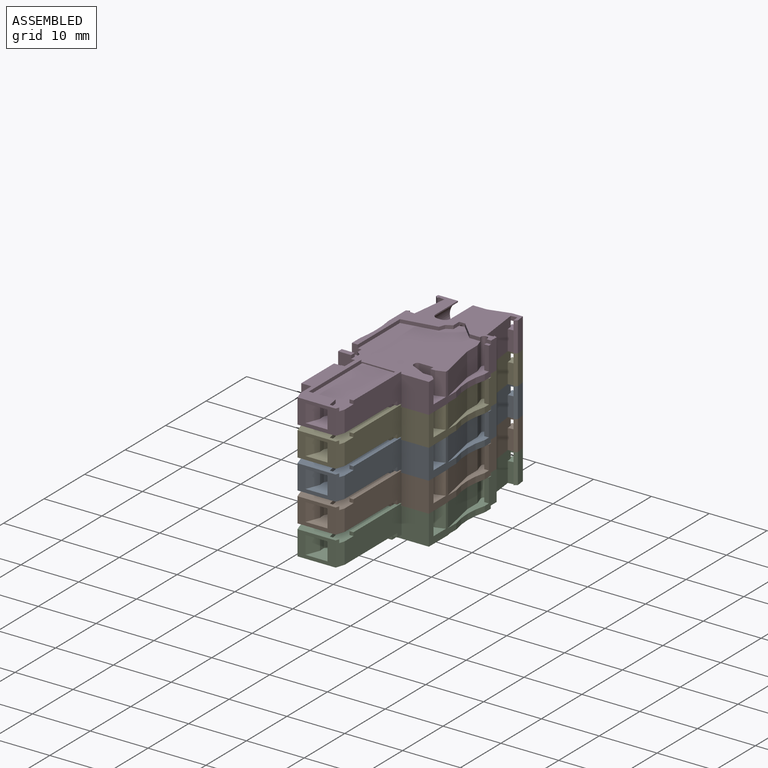
[diagram: assembled view]
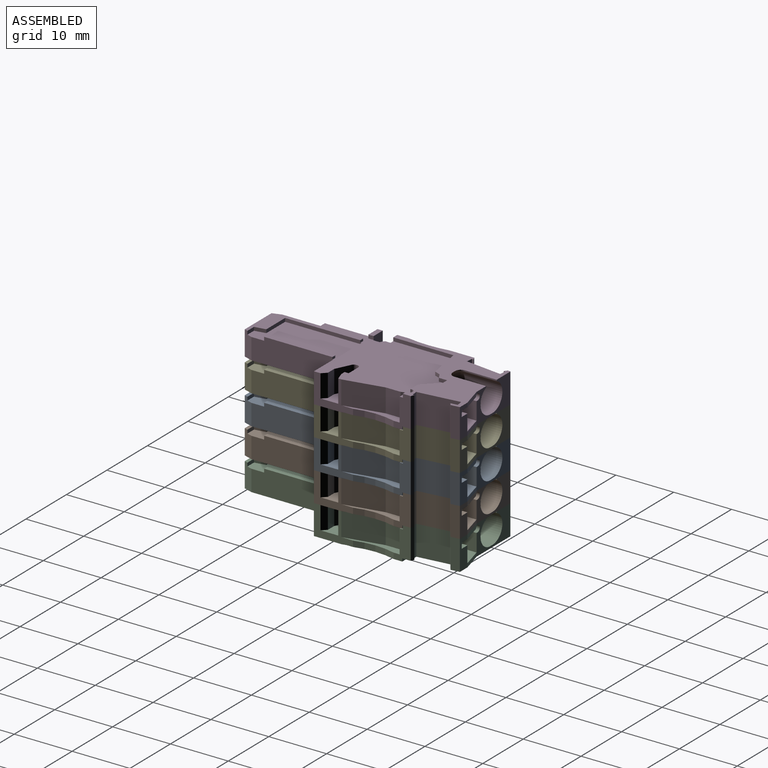
[diagram: assembled view, second angle]
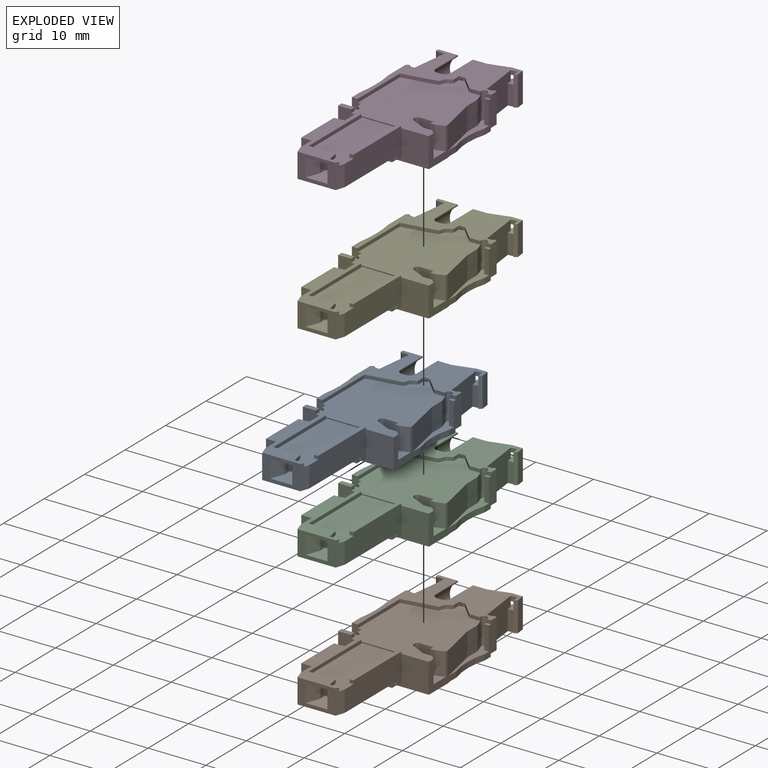
[diagram: exploded view]
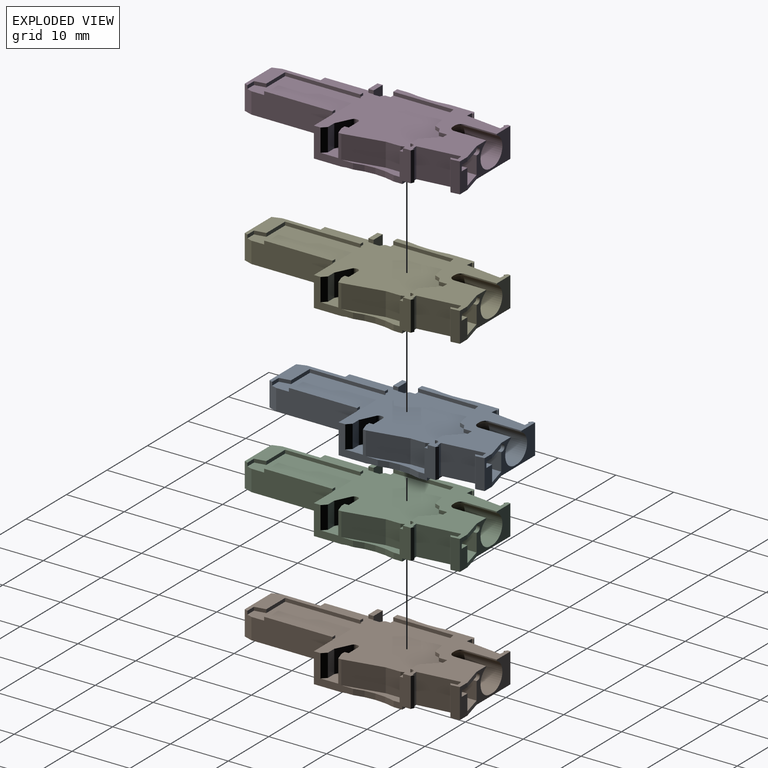
[diagram: exploded view, second angle]
ASSEMBLY  parts=5 mates=4
PART A: 174 faces, bbox 15.7x40.2x5.8 mm
  f0: plane 5.15x1.49mm, normal (0.99,0.12,0), area 7.8mm2, adj f1,f17,f164,f171
  f1: plane 5.15x0.49mm, normal (0.6,-0.8,0), area 3.1mm2, adj f0,f2,f164,f171
  f2: plane 5.15x1.16mm, normal (-0.99,-0.12,0), area 2.9mm2, adj f1,f3,f64,f78,f81,f164,f171
  f3: plane 3.45x1.06mm, normal (0.12,-0.99,0), area 3.7mm2, adj f2,f4,f64,f171
  f4: plane 7.17x5.15mm, normal (0.99,0.12,0), area 34.1mm2, adj f3,f5,f64,f79,f81,f164,f171
  f5: plane 5.15x1.06mm, normal (-0.12,0.99,0), area 5.5mm2, adj f4,f6,f164,f171
  f6: plane 5.15x0.27mm, normal (-0.99,-0.12,0), area 1.4mm2, adj f5,f7,f164,f171
  f7: plane 5.15x0.56mm, normal (0.39,0.92,0), area 3.1mm2, adj f6,f8,f164,f171
  f8: plane 5.65x2.95mm, normal (1,0,0), area 10.8mm2, adj f7,f9,f111,f112,f135,f136,f151,f152
  f9: cylinder r=12.6mm len=7.03mm, axis (0,0,1), area 7.1mm2, adj f8,f10,f112,f152
  f10: plane 6.76x5.15mm, normal (1,0,0), area 14.3mm2, adj f9,f99,f100,f102,f112,f119,f122,f128
  f11: plane 4.25x2.51mm, normal (-0.95,-0.32,0), area 7.8mm2, adj f12,f16,f18,f45,f59,f124,f167
  f12: plane 6.6x4.25mm, normal (0,-1,0), area 16.3mm2, adj f11,f14,f16,f51,f53,f54,f55,f59
  f13: plane 3.7x1mm, normal (-0.26,0.97,0), area 2.6mm2, adj f17,f27,f66,f76,f164
  f14: plane 4.25x1.5mm, normal (0.95,-0.32,0), area 6.2mm2, adj f12,f16,f59,f132,f160,f162
  f15: plane 1.13x1.1mm, normal (-1,0,0), area 1.2mm2, adj f116,f120,f121,f128
  f16: plane 15.5x7.3mm, normal (0,0,1), area 23.5mm2, adj f11,f12,f14,f118,f124,f130,f133,f145
  f17: plane 5.15x1.84mm, normal (0,1,0), area 8.1mm2, adj f0,f13,f60,f62,f64,f66,f78,f164
  f18: cylinder r=2mm len=3.06mm, axis (0,0,-1), area 3.5mm2, adj f11,f45,f124,f167
  f19: plane 11.8x0.7mm, normal (0,0,1), area 8.3mm2, adj f131,f132,f134,f159
  f20: plane 3.4x1.6mm, normal (0,-1,0), area 4.4mm2, adj f22,f40,f42,f46,f124,f165,f166
  f21: plane 5.15x0.49mm, normal (-0.99,0.12,0), area 2.6mm2, adj f27,f36,f164,f171
  f22: plane 8.1x1.6mm, normal (-1,0,0), area 13mm2, adj f20,f23,f46,f165
  f23: plane 2.4x1.6mm, normal (0,1,0), area 3mm2, adj f22,f24,f38,f39,f42,f44,f46,f165
  f24: plane 1x0.6mm, normal (-1,0,0), area 0.6mm2, adj f23,f25,f39,f44
  f25: plane 5.75x4.3mm, normal (0,-1,0), area 14.1mm2, adj f24,f26,f38,f39,f43,f44,f124,f128
  f26: plane 5.48x5.15mm, normal (-1,0,0), area 15.3mm2, adj f25,f28,f37,f44,f101,f120,f121,f164
  f27: plane 8.36x5.15mm, normal (0,1,0), area 21.2mm2, adj f13,f21,f60,f63,f76,f77,f86,f87
  f28: cylinder r=20.57mm len=7mm, axis (0,0,1), area 36.2mm2, adj f26,f29,f164,f171
  f29: plane 5.15x4.26mm, normal (-1,0,0), area 22mm2, adj f28,f30,f164,f171
  f30: plane 5.15x0.56mm, normal (-0.39,0.92,0), area 3.1mm2, adj f29,f31,f164,f171
  f31: plane 5.15x0.27mm, normal (0.99,-0.12,0), area 1.4mm2, adj f30,f32,f164,f171
  f32: plane 5.15x1.06mm, normal (0.12,0.99,0), area 5.5mm2, adj f31,f33,f164,f171
  f33: plane 6.28x5.15mm, normal (-0.99,0.12,0), area 32.6mm2, adj f32,f34,f164,f171
  f34: plane 5.15x1.06mm, normal (-0.12,-0.99,0), area 5.5mm2, adj f33,f35,f164,f171
  f35: plane 5.15x0.27mm, normal (0.99,-0.12,0), area 1.4mm2, adj f34,f36,f164,f171
  f36: plane 5.15x0.49mm, normal (-0.6,-0.8,0), area 3.2mm2, adj f21,f35,f164,f171
  f37: plane 2.53x1.2mm, normal (0.17,-0.98,0), area 3.1mm2, adj f26,f43,f44,f171
  f38: plane 1x0.6mm, normal (1,0,0), area 0.6mm2, adj f23,f25,f39,f44
  f39: plane 1.4x1mm, normal (0,0,1), area 1.4mm2, adj f23,f24,f25,f38
  f40: plane 1.2x1mm, normal (0,0,-1), area 1.1mm2, adj f20,f41,f42,f124
  f41: plane 1x0.6mm, normal (-0.2,0.98,0), area 0.6mm2, adj f40,f42,f124,f166
  f42: plane 8.1x1.6mm, normal (1,0,0), area 12.4mm2, adj f20,f23,f40,f41,f46,f165,f166
  f43: plane 3.63x2.53mm, normal (-1,0,0), area 9.2mm2, adj f25,f37,f44,f171
  f44: plane 4.63x1.9mm, normal (0,0,-1), area 5.6mm2, adj f23,f24,f25,f26,f37,f38,f43
  f45: plane 4.07x0.9mm, normal (0,0,-1), area 2.2mm2, adj f11,f18,f124
  f46: plane 8.1x2.4mm, normal (0,0,1), area 19.4mm2, adj f20,f22,f23,f42
  f47: plane 3.95x2.4mm, normal (0,-1,0), area 9.5mm2, adj f99,f107,f128,f143
  f48: plane 9x1.6mm, normal (0,0,-1), area 2.6mm2, adj f50,f51,f52,f56,f57,f108,f109,f110
  f49: plane 9x1.6mm, normal (0,0,1), area 2.6mm2, adj f50,f52,f53,f56,f57,f108,f109,f110
  f50: plane 2.75x0.94mm, normal (-1,0,0), area 2.5mm2, adj f48,f49,f51,f53,f55,f57
  f51: plane 3.8x2.5mm, normal (0,-0.09,-1), area 6.2mm2, adj f12,f48,f50,f52,f54,f55
  f52: plane 2.75x0.94mm, normal (1,0,0), area 2.5mm2, adj f48,f49,f51,f53,f54,f56
  f53: plane 3.8x2.5mm, normal (0,-0.09,1), area 6.2mm2, adj f12,f49,f50,f52,f54,f55
  f54: plane 3.1x2mm, normal (0.88,-0.48,0), area 6.7mm2, adj f12,f51,f52,f53
  f55: plane 3.1x2mm, normal (-0.88,-0.48,0), area 6.7mm2, adj f12,f50,f51,f53
  f56: plane 2.66x1.29mm, normal (0.87,-0.5,0), area 4mm2, adj f48,f49,f52,f109
  f57: plane 2.66x1.29mm, normal (-0.87,-0.5,0), area 4mm2, adj f48,f49,f50,f110
  f58: plane 7.6x1.3mm, normal (0,-1,0), area 8.8mm2, adj f59,f124,f132,f150,f156,f157,f172,f173
  f59: plane 14.5x7.6mm, normal (0,0,-1), area 109.5mm2, adj f11,f12,f14,f58,f124,f132
  f60: plane 3.7x1mm, normal (-0.26,0.97,0), area 2.5mm2, adj f17,f27,f61,f171
  f61: plane 8.14x3.7mm, normal (0,0,1), area 23.5mm2, adj f60,f62,f63,f70
  f62: plane 8.14x3.8mm, normal (-1,0,0), area 30.1mm2, adj f17,f61,f64,f66,f70,f79
  f63: plane 4.55x3.05mm, normal (1,0,0), area 13.9mm2, adj f27,f61,f70,f77
  f64: plane 1.72x1.5mm, normal (0,0,1), area 2.1mm2, adj f2,f3,f4,f17,f62,f78,f79
  f65: plane 2.33x2mm, normal (0,0,-1), area 2.8mm2, adj f72,f74,f75,f80,f93,f94
  f66: plane 8.14x4.83mm, normal (0,0,-1), area 23.3mm2, adj f13,f17,f62,f70,f76,f78,f79,f81
  f67: cylinder r=1mm len=8.43mm, axis (0,-1,0), area 13.1mm2, adj f73,f80,f83,f92
  f68: plane 0.91x0.49mm, normal (-1,0,0), area 0.4mm2, adj f69,f70,f71,f76
  f69: plane 1.1x0.26mm, normal (-0.71,0,0.71), area 0.4mm2, adj f68,f70,f71,f77
  f70: plane 3.8x3.7mm, normal (0.57,0.82,0), area 17mm2, adj f61,f62,f63,f66,f68,f69
  f71: plane 1.06x0.85mm, normal (0,1,0), area 0.8mm2, adj f68,f69,f76,f77,f128
  f72: plane 0.87x0.27mm, normal (-1,0,0), area 0.2mm2, adj f65,f75,f94,f95
  f73: plane 7.99x0.9mm, normal (1,0,0), area 7.1mm2, adj f67,f74,f80,f83
  f74: cylinder r=1mm len=8.43mm, axis (0,-1,0), area 12mm2, adj f65,f73,f75,f80,f83,f95
  f75: plane 2.13x0.47mm, normal (0,0.5,-0.87), area 1mm2, adj f65,f72,f74,f95
  f76: cylinder r=0.55mm len=5.73mm, axis (0,-1,0), area 13.5mm2, adj f13,f27,f66,f68,f71,f77,f128,f139
  f77: plane 5.65x0.25mm, normal (0,0,1), area 1.4mm2, adj f27,f63,f69,f71,f76
  f78: plane 1x0.7mm, normal (-1,0,0), area 0.7mm2, adj f2,f17,f64,f66
  f79: plane 1x0.33mm, normal (-0.12,0.99,0), area 0.3mm2, adj f4,f62,f64,f66
  f80: plane 2.65x2.63mm, normal (0,1,0), area 6.7mm2, adj f65,f67,f73,f74,f92,f93
  f81: plane 1.06x0.7mm, normal (0.12,-0.99,0), area 0.7mm2, adj f2,f4,f66,f164
  f82: plane 2.9x0.63mm, normal (-0.5,0.87,0), area 2.1mm2, adj f92,f93,f95,f96
  f83: cone r=2.4mm half-angle=30deg, axis (0,1,0), area 12.4mm2, adj f67,f73,f74,f84,f88,f91,f92,f95
  f84: plane 1.65x0.95mm, normal (0,0.5,-0.87), area 1.1mm2, adj f83,f85,f95,f164
  f85: cone r=2.4mm half-angle=30deg, axis (0,1,0), area 2.4mm2, adj f84,f86,f95,f96,f98
  f86: cylinder r=2.4mm len=6.5mm, axis (0,-1,0), area 38.7mm2, adj f27,f85,f90,f97,f98,f168,f169
  f87: plane 5.5x0.22mm, normal (1,0,0), area 1.2mm2, adj f27,f88,f89,f164
  f88: cylinder r=2.4mm len=6.5mm, axis (0,1,0), area 42.5mm2, adj f27,f83,f87,f89,f90
  f89: cylinder r=1mm len=1mm, axis (0,0,1), area 0.2mm2, adj f87,f88,f164
  f90: plane 6.5x0.6mm, normal (0,0,1), area 3.9mm2, adj f27,f86,f88,f91
  f91: plane 1.65x0.95mm, normal (0,0.5,0.87), area 1.1mm2, adj f83,f90,f92,f97
  f92: plane 9.57x2.28mm, normal (0,0,1), area 14.4mm2, adj f67,f80,f82,f83,f91,f93,f96,f97
  f93: plane 8.45x2.9mm, normal (-1,0,0), area 24mm2, adj f65,f80,f82,f92,f94,f95
  f94: plane 0.27x0.2mm, normal (0,1,0), area 0.1mm2, adj f65,f72,f93,f95
  f95: plane 7.97x2.28mm, normal (0,0,-1), area 11.7mm2, adj f72,f74,f75,f82,f83,f84,f85,f93
  f96: plane 3.21x0.95mm, normal (-1,0,0), area 2.8mm2, adj f82,f85,f92,f95,f97,f98
  f97: cone r=2.4mm half-angle=30deg, axis (0,1,0), area 2.4mm2, adj f86,f91,f92,f96,f98
  f98: plane 3.41x1.82mm, normal (-0.91,0.42,0), area 5mm2, adj f85,f86,f96,f97
  f99: plane 5.2x3.25mm, normal (0,0,1), area 9.9mm2, adj f10,f47,f100,f102,f103,f104,f105,f106
  f100: plane 3.95x0.75mm, normal (0.71,0.71,0), area 4.2mm2, adj f10,f99,f106,f128
  f101: plane 1.7x1.65mm, normal (0,-1,0), area 2.4mm2, adj f26,f120,f125,f128,f137,f164
  f102: plane 3.95x1.5mm, normal (0.32,-0.95,0), area 6.2mm2, adj f10,f99,f103,f128
  f103: plane 3.95x0.8mm, normal (0,-1,0), area 3.2mm2, adj f99,f102,f107,f128
  f104: plane 3.95x0.16mm, normal (1,0,0), area 0.6mm2, adj f99,f128,f142,f143
  f105: plane 3.95x2.5mm, normal (0.43,0.9,0), area 11mm2, adj f99,f106,f128,f142
  f106: plane 3.95x1.55mm, normal (0,1,0), area 6.1mm2, adj f99,f100,f105,f128
  f107: plane 3.95x0.7mm, normal (-1,0,0), area 2.8mm2, adj f47,f99,f103,f128
  f108: plane 2.66x0.11mm, normal (0,-1,0), area 0.3mm2, adj f48,f49,f109,f110
  f109: plane 7.27x2.66mm, normal (1,0,0), area 19.4mm2, adj f48,f49,f56,f108
  f110: plane 7.27x2.66mm, normal (-1,0,0), area 19.4mm2, adj f48,f49,f57,f108
  f111: plane 4.05x0.8mm, normal (0,-1,0), area 3.2mm2, adj f8,f112,f127,f136
  f112: plane 11.41x1.92mm, normal (0,0,1), area 8.5mm2, adj f8,f9,f10,f111,f113,f114,f115,f119
  f113: plane 4.05x2.56mm, normal (1,0,0), area 10.4mm2, adj f112,f115,f119,f128
  f114: plane 4.65x0.12mm, normal (0,-1,0), area 0.5mm2, adj f112,f144,f163,f164
  f115: plane 4.65x1.47mm, normal (0.95,0.32,0), area 6.3mm2, adj f112,f113,f128,f141,f163,f164
  f116: cylinder r=1.55mm len=1.1mm, axis (0,0,1), area 0.9mm2, adj f15,f120,f125,f128
  f117: plane 1.01x0.6mm, normal (0.94,-0.34,0), area 0.6mm2, adj f123,f126,f128,f164
  f118: plane 4.64x0.6mm, normal (0,1,0), area 2.8mm2, adj f16,f133,f145,f160
  f119: plane 6.72x4.05mm, normal (0.98,0.2,0), area 27.8mm2, adj f10,f112,f113,f128
  f120: plane 2.53x2.35mm, normal (0,0,1), area 5.1mm2, adj f15,f26,f101,f116,f121,f125
  f121: plane 2.35x1.7mm, normal (0,1,0), area 3.9mm2, adj f15,f26,f120,f128,f129,f170
  f122: plane 5.6x5.15mm, normal (0,-1,0), area 24.7mm2, adj f10,f128,f132,f150,f156,f172
  f123: plane 1.03x0.6mm, normal (0.5,-0.87,0), area 0.7mm2, adj f117,f128,f138,f164
  f124: plane 14.1x4.95mm, normal (-1,0,0), area 55.9mm2, adj f11,f16,f18,f20,f25,f40,f41,f45
  f125: plane 1.1x0.91mm, normal (-1,0,0), area 1mm2, adj f101,f116,f120,f128
  f126: plane 6.01x1.06mm, normal (0.17,-0.98,0), area 3.7mm2, adj f117,f128,f137,f164
  f127: plane 4.65x0.81mm, normal (-1,0,0), area 3.4mm2, adj f111,f112,f135,f136,f144,f164
  f128: plane 18.03x14.7mm, normal (0,0,1), area 202mm2, adj f10,f15,f25,f47,f71,f76,f100,f101
  f129: plane 0.9x0.6mm, normal (1,0,0), area 0.5mm2, adj f25,f121,f128,f170
  f130: plane 0.7x0.4mm, normal (0,1,0), area 0.3mm2, adj f16,f124,f128,f133
  f131: plane 12x0.6mm, normal (-1,0,0), area 7.1mm2, adj f19,f128,f134,f159,f160,f161
  f132: plane 14.1x4.95mm, normal (1,0,0), area 59.3mm2, adj f14,f19,f58,f59,f122,f128,f134,f159
  f133: plane 13.2x0.6mm, normal (1,0,0), area 7.8mm2, adj f16,f118,f128,f130,f160,f161
  f134: plane 0.7x0.4mm, normal (0,1,0), area 0.3mm2, adj f19,f128,f131,f132
  f135: plane 0.8x0.6mm, normal (0,-1,0), area 0.5mm2, adj f8,f127,f136,f164
  f136: plane 0.8x0.55mm, normal (0,0,1), area 0.4mm2, adj f8,f111,f127,f135
  f137: plane 10.41x0.6mm, normal (1,0,0), area 6.2mm2, adj f101,f126,f128,f164
  f138: plane 1.43x0.6mm, normal (1,0,0), area 0.9mm2, adj f123,f128,f139,f164
  f139: plane 1x0.6mm, normal (0,-1,0), area 0.4mm2, adj f76,f128,f138,f140,f164
  f140: plane 2.55x2.55mm, normal (-0.71,-0.71,0), area 2.2mm2, adj f76,f128,f139,f141,f164
  f141: plane 1.89x0.6mm, normal (0,-1,0), area 1.1mm2, adj f115,f128,f140,f164
  f142: cylinder r=0.7mm len=3.95mm, axis (0,0,1), area 3.1mm2, adj f99,f104,f105,f128
  f143: cylinder r=0.5mm len=3.95mm, axis (0,0,-1), area 3.1mm2, adj f47,f99,f104,f128
  f144: cylinder r=0.5mm len=4.65mm, axis (0,0,1), area 3.7mm2, adj f112,f114,f127,f164
  f145: plane 1.9x0.6mm, normal (0.98,0.17,0), area 1.2mm2, adj f16,f118,f160,f162
  f146: plane 8.06x1.42mm, normal (-0.17,0.98,0), area 4.9mm2, adj f149,f150,f151,f171
  f147: plane 1.25x0.6mm, normal (0,-1,0), area 0.7mm2, adj f148,f149,f150,f171
  f148: plane 8.72x0.6mm, normal (-1,0,0), area 5.2mm2, adj f25,f147,f150,f171
  f149: plane 5.14x0.6mm, normal (-1,0,0), area 3.1mm2, adj f146,f147,f150,f171
  f150: plane 16.38x14.6mm, normal (0,0,-1), area 201.5mm2, adj f10,f25,f58,f122,f146,f147,f148,f149
  f151: plane 6.54x0.6mm, normal (0,1,0), area 3.7mm2, adj f8,f146,f150,f152,f155,f171
  f152: plane 10.55x2.2mm, normal (0,0,-1), area 8.9mm2, adj f8,f9,f10,f151,f153,f154,f155,f158
  f153: plane 0.8x0.1mm, normal (0,1,0), area 0.1mm2, adj f150,f152,f154,f155
  f154: plane 2.33x0.1mm, normal (1,0,0), area 0.2mm2, adj f150,f152,f153,f158
  f155: plane 1.5x0.1mm, normal (1,0,0), area 0.2mm2, adj f150,f151,f152,f153
  f156: plane 1.1x0.6mm, normal (1,0,0), area 0.7mm2, adj f58,f122,f150,f172
  f157: plane 1.1x0.6mm, normal (-1,0,0), area 0.7mm2, adj f25,f58,f150,f173
  f158: plane 6.72x1.4mm, normal (0.98,0.2,0), area 0.7mm2, adj f10,f150,f152,f154
  f159: plane 0.7x0.6mm, normal (0,-1,0), area 0.4mm2, adj f19,f131,f132,f160
  f160: plane 15.1x6.9mm, normal (0,0,1), area 86.5mm2, adj f14,f118,f131,f132,f133,f145,f159,f161
  f161: plane 6.2x0.2mm, normal (0,-1,0), area 1.2mm2, adj f128,f131,f133,f160
  f162: plane 1.62x0.6mm, normal (0,1,0), area 1mm2, adj f14,f16,f145,f160
  f163: cylinder r=0.5mm len=4.65mm, axis (0,0,-1), area 4.4mm2, adj f112,f114,f115,f164
  f164: plane 21.15x15.7mm, normal (0,0,1), area 98.6mm2, adj f0,f1,f2,f4,f5,f6,f7,f8
  f165: plane 8.1x2.4mm, normal (0,0,-1), area 19.4mm2, adj f20,f22,f23,f42
  f166: plane 1.2x1mm, normal (0,0,1), area 1.1mm2, adj f20,f41,f42,f124
  f167: plane 4.07x0.9mm, normal (0,0,1), area 2.2mm2, adj f11,f18,f124
  f168: cylinder r=1mm len=1mm, axis (0,0,1), area 0.2mm2, adj f86,f164,f169
  f169: plane 5.5x0.22mm, normal (-1,0,0), area 1.2mm2, adj f27,f86,f164,f168
  f170: plane 2.25x0.9mm, normal (0,0,1), area 2mm2, adj f25,f26,f121,f129
  f171: plane 24.58x15.7mm, normal (0,0,-1), area 136.2mm2, adj f0,f1,f2,f3,f4,f5,f6,f7
  f172: plane 1.1x0.9mm, normal (0,0,-1), area 1mm2, adj f58,f122,f132,f156
  f173: plane 1.1x0.9mm, normal (0,0,-1), area 1mm2, adj f25,f58,f124,f157
PART B: same geometry as A
PART C: same geometry as A
PART D: same geometry as A
PART E: same geometry as A
PLACE A t=(-24.88,-15.85,-0.37)mm
PLACE B t=(-24.88,-15.85,-5.52)mm
PLACE C t=(-24.88,-15.85,-10.67)mm
PLACE D t=(-24.88,-15.85,9.93)mm
PLACE E t=(-24.88,-15.85,4.78)mm
MATE fastened C.f164 <-> B.f171  axis (0,0,1) through (-10.45,-4.18,48.2)mm
MATE fastened E.f164 <-> D.f171  axis (0,0,1) through (-10.45,-4.18,63.65)mm
MATE fastened A.f164 <-> E.f171  axis (0,0,1) through (-10.45,-4.18,58.5)mm
MATE fastened B.f164 <-> A.f171  axis (0,0,1) through (-10.45,-4.18,53.35)mm
